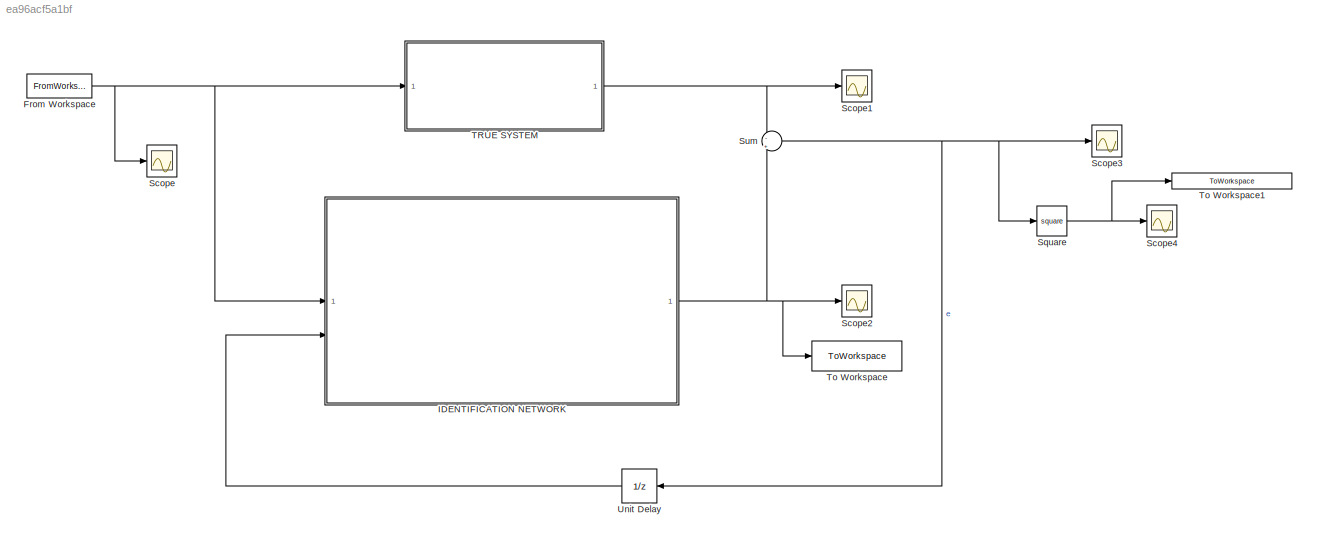
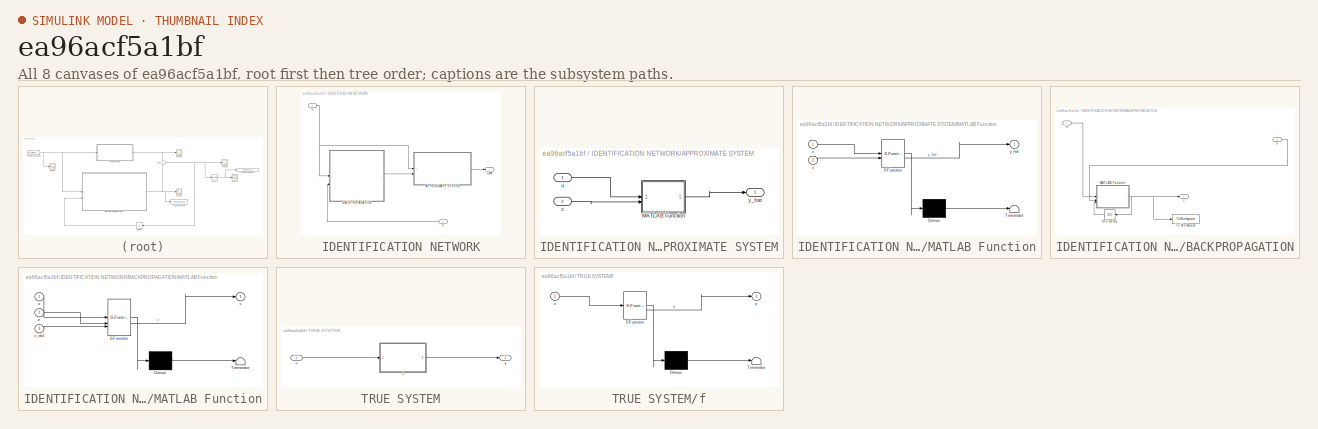
[diagram: thumbnail index - all 8 canvases of the model, root first then tree order]
MODEL slx_ea96acf5a1bf
KIND model
CONFIG AbsTol = auto
CONFIG EnableMultiTasking = off
CONFIG FixedStep = ST
CONFIG MaxStep = auto
CONFIG MinStep = auto
CONFIG RelTol = 1e-3
CONFIG SampleTimeConstraint = Unconstrained
CONFIG SolverName = FixedStepAuto
CONFIG StartTime = 0.0
CONFIG StopTime = time(end)
BLOCK [FromWorkspace] From Workspace
  SampleTime = ST
  VariableName = [time u]
BLOCK [SubSystem] IDENTIFICATION NETWORK
BLOCK [SubSystem] IDENTIFICATION NETWORK/APPROXIMATE SYSTEM
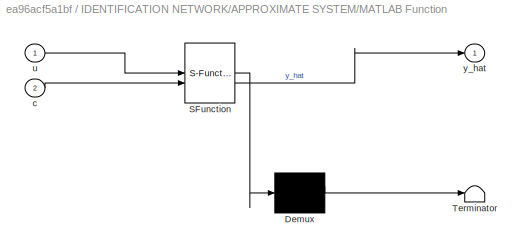
BLOCK [SubSystem] IDENTIFICATION NETWORK/APPROXIMATE SYSTEM/MATLAB Function
  ErrorFcn = Stateflow.Translate.translate
  PermitHierarchicalResolution = ExplicitOnly
  SFBlockType = MATLAB Function
  TreatAsAtomicUnit = on
BLOCK [Demux] IDENTIFICATION NETWORK/APPROXIMATE SYSTEM/MATLAB Function/ Demux 
  Outputs = 1
BLOCK [S-Function] IDENTIFICATION NETWORK/APPROXIMATE SYSTEM/MATLAB Function/ SFunction 
  EnableBusSupport = on
  FunctionName = sf_sfun
  Parameters = delta,n_nodes
  PortCounts = [2 2]
  SFcnIsStateOwnerBlock = off
  SFunctionDeploymentMode = off
  Tag = Stateflow S-Function 1
BLOCK [Terminator] IDENTIFICATION NETWORK/APPROXIMATE SYSTEM/MATLAB Function/ Terminator 
BLOCK [Inport] IDENTIFICATION NETWORK/APPROXIMATE SYSTEM/MATLAB Function/c
  Port = 2
BLOCK [Inport] IDENTIFICATION NETWORK/APPROXIMATE SYSTEM/MATLAB Function/u
BLOCK [Outport] IDENTIFICATION NETWORK/APPROXIMATE SYSTEM/MATLAB Function/y_hat
BLOCK [Inport] IDENTIFICATION NETWORK/APPROXIMATE SYSTEM/c
  Port = 2
BLOCK [Inport] IDENTIFICATION NETWORK/APPROXIMATE SYSTEM/u
BLOCK [Outport] IDENTIFICATION NETWORK/APPROXIMATE SYSTEM/y_hat
BLOCK [SubSystem] IDENTIFICATION NETWORK/BACKPROPAGATION
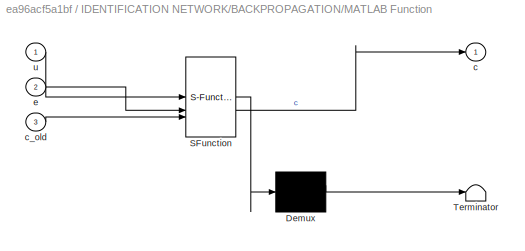
BLOCK [SubSystem] IDENTIFICATION NETWORK/BACKPROPAGATION/MATLAB Function
  ErrorFcn = Stateflow.Translate.translate
  PermitHierarchicalResolution = ExplicitOnly
  SFBlockType = MATLAB Function
  TreatAsAtomicUnit = on
BLOCK [Demux] IDENTIFICATION NETWORK/BACKPROPAGATION/MATLAB Function/ Demux 
  Outputs = 1
BLOCK [S-Function] IDENTIFICATION NETWORK/BACKPROPAGATION/MATLAB Function/ SFunction 
  EnableBusSupport = on
  FunctionName = sf_sfun
  Parameters = delta,k_a,n_nodes
  PortCounts = [3 2]
  SFcnIsStateOwnerBlock = off
  SFunctionDeploymentMode = off
  Tag = Stateflow S-Function 3
BLOCK [Terminator] IDENTIFICATION NETWORK/BACKPROPAGATION/MATLAB Function/ Terminator 
BLOCK [Outport] IDENTIFICATION NETWORK/BACKPROPAGATION/MATLAB Function/c
BLOCK [Inport] IDENTIFICATION NETWORK/BACKPROPAGATION/MATLAB Function/c_old
  Port = 3
BLOCK [Inport] IDENTIFICATION NETWORK/BACKPROPAGATION/MATLAB Function/e
  Port = 2
BLOCK [Inport] IDENTIFICATION NETWORK/BACKPROPAGATION/MATLAB Function/u
BLOCK [ToWorkspace] IDENTIFICATION NETWORK/BACKPROPAGATION/To Workspace
  FixptAsFi = on
  MaxDataPoints = inf
  SampleTime = -1
  SaveFormat = Timeseries
  VariableName = c
BLOCK [UnitDelay] IDENTIFICATION NETWORK/BACKPROPAGATION/Unit Delay
  HasFrameUpgradeWarning = on
  InitialCondition = c_init
  NameLocation = top
  SampleTime = ST
BLOCK [Outport] IDENTIFICATION NETWORK/BACKPROPAGATION/c
BLOCK [Inport] IDENTIFICATION NETWORK/BACKPROPAGATION/e
  Port = 2
BLOCK [Inport] IDENTIFICATION NETWORK/BACKPROPAGATION/u
BLOCK [Inport] IDENTIFICATION NETWORK/e
  Port = 2
BLOCK [Inport] IDENTIFICATION NETWORK/u
BLOCK [Outport] IDENTIFICATION NETWORK/y_hat
BLOCK [Scope] Scope
  Floating = off
  NumInputPorts = 1
  ScopeSpecificationString = Simulink.scopes.TimeScopeBlockCfg('CurrentConfiguration', extmgr.ConfigurationSet(extmgr.Configuration('Core','General UI',true),extmgr.Configuration('Core','Source UI',true),extmgr.Configuration('Sources','WiredSimulink',true),extmgr.Configuration('Visuals','Time Domain',true,'SerializedDisplays',{struct('MinYLimReal','-1.78163','MaxYLimReal','1.86462','YLabelReal','','MinYLimMag','0.00000','MaxY...<+1463ch>
BLOCK [Scope] Scope1
  Floating = off
  NumInputPorts = 1
  ScopeSpecificationString = Simulink.scopes.TimeScopeBlockCfg('CurrentConfiguration', extmgr.ConfigurationSet(extmgr.Configuration('Core','General UI',true),extmgr.Configuration('Core','Source UI',true),extmgr.Configuration('Sources','WiredSimulink',true,'DataLoggingVariableName','ScopeData1'),extmgr.Configuration('Visuals','Time Domain',true,'SerializedDisplays',{struct('MinYLimReal','-0.19894','MaxYLimReal','0.19894','YLab...<+1499ch>
BLOCK [Scope] Scope2
  Floating = off
  NumInputPorts = 1
  ScopeSpecificationString = Simulink.scopes.TimeScopeBlockCfg('CurrentConfiguration', extmgr.ConfigurationSet(extmgr.Configuration('Core','General UI',true),extmgr.Configuration('Core','Source UI',true),extmgr.Configuration('Sources','WiredSimulink',true,'DataLoggingVariableName','ScopeData2'),extmgr.Configuration('Visuals','Time Domain',true,'SerializedDisplays',{struct('MinYLimReal','-0.30678','MaxYLimReal','1.12568','YLab...<+1508ch>
BLOCK [Scope] Scope3
  Floating = off
  NumInputPorts = 1
  ScopeSpecificationString = Simulink.scopes.TimeScopeBlockCfg('CurrentConfiguration', extmgr.ConfigurationSet(extmgr.Configuration('Core','General UI',true),extmgr.Configuration('Core','Source UI',true),extmgr.Configuration('Sources','WiredSimulink',true,'DataLoggingVariableName','ScopeData3'),extmgr.Configuration('Visuals','Time Domain',true,'SerializedDisplays',{struct('MinYLimReal','-0.16763','MaxYLimReal','0.19235','YLab...<+1533ch>
BLOCK [Scope] Scope4
  Floating = off
  NumInputPorts = 1
  ScopeSpecificationString = Simulink.scopes.TimeScopeBlockCfg('CurrentConfiguration', extmgr.ConfigurationSet(extmgr.Configuration('Core','General UI',true),extmgr.Configuration('Core','Source UI',true),extmgr.Configuration('Sources','WiredSimulink',true,'DataLoggingVariableName','ScopeData1'),extmgr.Configuration('Visuals','Time Domain',true,'SerializedDisplays',{struct('MinYLimReal','-0.00306','MaxYLimReal','0.0275','YLabe...<+1534ch>
BLOCK [Math] Square
  Operator = square
BLOCK [Sum] Sum
  Inputs = -|+
BLOCK [SubSystem] TRUE SYSTEM
BLOCK [SubSystem] TRUE SYSTEM/f
  ErrorFcn = Stateflow.Translate.translate
  PermitHierarchicalResolution = ExplicitOnly
  SFBlockType = MATLAB Function
  TreatAsAtomicUnit = on
BLOCK [Demux] TRUE SYSTEM/f/ Demux 
  Outputs = 1
BLOCK [S-Function] TRUE SYSTEM/f/ SFunction 
  EnableBusSupport = on
  FunctionName = sf_sfun
  PortCounts = [1 2]
  SFcnIsStateOwnerBlock = off
  SFunctionDeploymentMode = off
  Tag = Stateflow S-Function 2
BLOCK [Terminator] TRUE SYSTEM/f/ Terminator 
BLOCK [Inport] TRUE SYSTEM/f/u
BLOCK [Outport] TRUE SYSTEM/f/y
BLOCK [Inport] TRUE SYSTEM/u
BLOCK [Outport] TRUE SYSTEM/y
BLOCK [ToWorkspace] To Workspace
  FixptAsFi = on
  MaxDataPoints = inf
  SampleTime = -1
  SaveFormat = Timeseries
  VariableName = y_hat
BLOCK [ToWorkspace] To Workspace1
  FixptAsFi = on
  MaxDataPoints = inf
  SampleTime = -1
  SaveFormat = Timeseries
  VariableName = squared_error_training
BLOCK [UnitDelay] Unit Delay
  HasFrameUpgradeWarning = on
  NameLocation = top
  SampleTime = ST
NET From Workspace:1 -> IDENTIFICATION NETWORK:1, Scope:1, TRUE SYSTEM:1
LINE IDENTIFICATION NETWORK/APPROXIMATE SYSTEM/MATLAB Function:1 -> IDENTIFICATION NETWORK/APPROXIMATE SYSTEM/y_hat:1
LINE IDENTIFICATION NETWORK/APPROXIMATE SYSTEM/c:1 -> IDENTIFICATION NETWORK/APPROXIMATE SYSTEM/MATLAB Function:2
LINE IDENTIFICATION NETWORK/APPROXIMATE SYSTEM/u:1 -> IDENTIFICATION NETWORK/APPROXIMATE SYSTEM/MATLAB Function:1
LINE IDENTIFICATION NETWORK/APPROXIMATE SYSTEM:1 -> IDENTIFICATION NETWORK/y_hat:1
NET IDENTIFICATION NETWORK/BACKPROPAGATION/MATLAB Function:1 -> IDENTIFICATION NETWORK/BACKPROPAGATION/To Workspace:1, IDENTIFICATION NETWORK/BACKPROPAGATION/Unit Delay:1, IDENTIFICATION NETWORK/BACKPROPAGATION/c:1
LINE IDENTIFICATION NETWORK/BACKPROPAGATION/Unit Delay:1 -> IDENTIFICATION NETWORK/BACKPROPAGATION/MATLAB Function:3
LINE IDENTIFICATION NETWORK/BACKPROPAGATION/e:1 -> IDENTIFICATION NETWORK/BACKPROPAGATION/MATLAB Function:2
LINE IDENTIFICATION NETWORK/BACKPROPAGATION/u:1 -> IDENTIFICATION NETWORK/BACKPROPAGATION/MATLAB Function:1
LINE IDENTIFICATION NETWORK/BACKPROPAGATION:1 -> IDENTIFICATION NETWORK/APPROXIMATE SYSTEM:2
LINE IDENTIFICATION NETWORK/e:1 -> IDENTIFICATION NETWORK/BACKPROPAGATION:2
NET IDENTIFICATION NETWORK/u:1 -> IDENTIFICATION NETWORK/APPROXIMATE SYSTEM:1, IDENTIFICATION NETWORK/BACKPROPAGATION:1
NET IDENTIFICATION NETWORK:1 -> Scope2:1, Sum:2, To Workspace:1
NET Square:1 -> Scope4:1, To Workspace1:1
NET Sum:1 -> Scope3:1, Square:1, Unit Delay:1
LINE TRUE SYSTEM/f:1 -> TRUE SYSTEM/y:1
LINE TRUE SYSTEM/u:1 -> TRUE SYSTEM/f:1
NET TRUE SYSTEM:1 -> Scope1:1, Sum:1
LINE Unit Delay:1 -> IDENTIFICATION NETWORK:2
note: NET lines group one-source signal fan-out (src -> all destinations, sorted); 1:1 wires keep LINE
CHART IDENTIFICATION NETWORK/APPROXIMATE SYSTEM/MATLAB Function states=1 transitions=1
  STATE_LABEL 'eML_blk_kernel()'
  STATE_LABEL 'SCRIPT:\nfunction y_hat = f_hat(u, c, delta, n_nodes)\n\ny_hat_temp = 0;\n\nshift = ceil(n_nodes/2);\n\nfor i = 1:length(c)\n    k = i-shift;\n    y_hat_temp = y_hat_temp + c(i)*grf(u, k, delta);\nend\n\ny_hat = y_hat_temp;\n'
CHART TRUE SYSTEM/f states=1 transitions=1
  STATE_LABEL 'eML_blk_kernel()'
  STATE_LABEL 'SCRIPT:\nfunction y = fcn(u)\n\ny = true_system(u);\n'
CHART IDENTIFICATION NETWORK/BACKPROPAGATION/MATLAB Function states=1 transitions=1
  STATE_LABEL 'eML_blk_kernel()'
  STATE_LABEL 'SCRIPT:\nfunction c = c_update(u, e, c_old, delta, k_a, n_nodes)\n\nc_temp = c_old;\n\nshift = ceil(n_nodes/2);\n\nfor i = 1:length(c_old)\n    k = i-shift;\n    c_temp(i) = c_temp(i) - k_a * e * grf(u, k, delta);\nend\n\nc = c_temp;\n\n'
CHART  states=0 transitions=0
CHART  states=0 transitions=0
CHART  states=0 transitions=0
